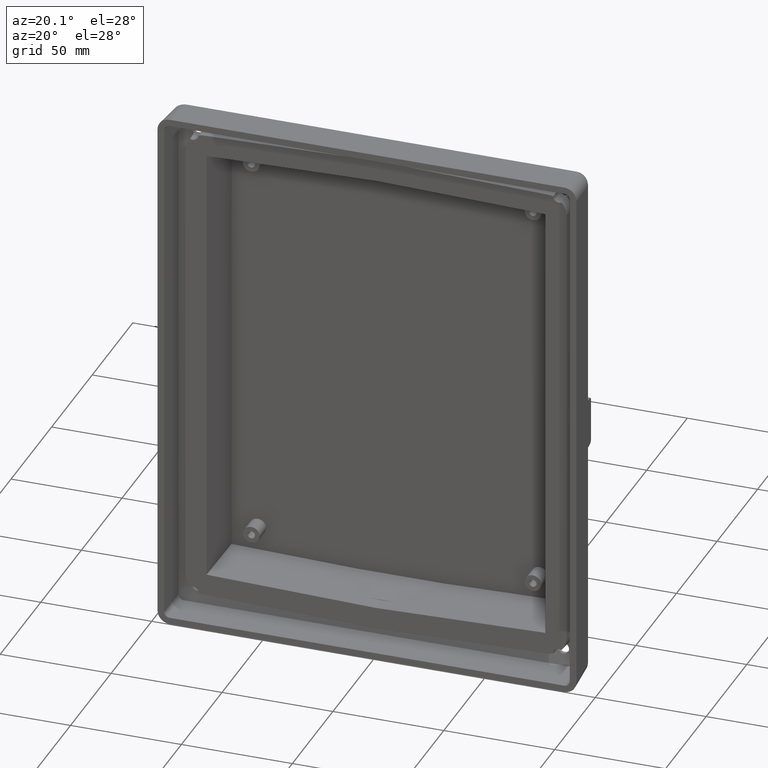
[diagram: clean part render]
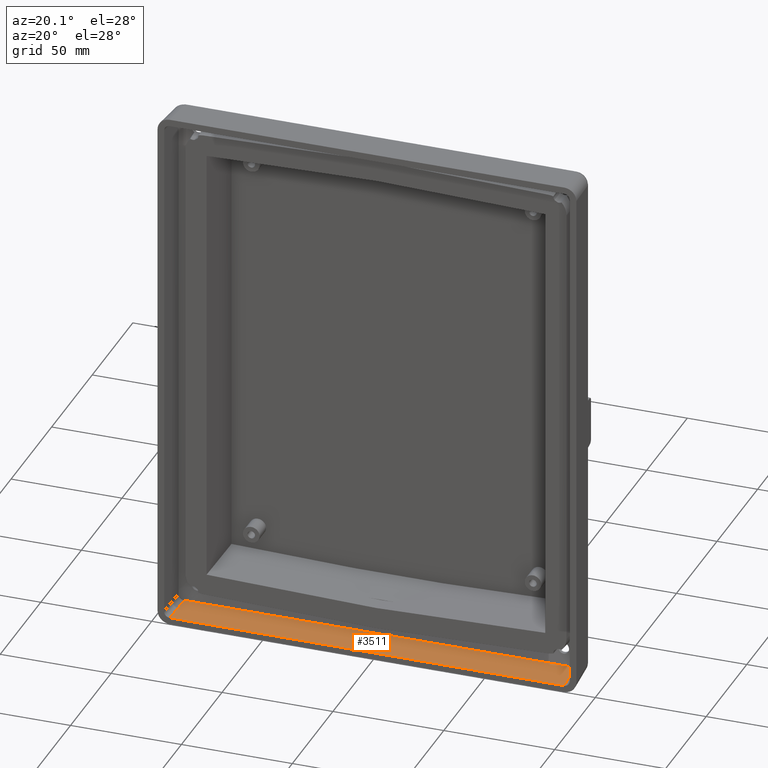
[diagram: same view with one face highlighted and labeled with its STEP entity id]
A machine part, auxiliary view. The second image highlights one B-rep face of the part: STEP entity #3511.
In plain terms, the highlighted planar face has unit normal (-0, 0.0523, -0.9986).
Its self-contained STEP definition (entity closure, byte-faithful):
#391 = ORIENTED_EDGE ( 'NONE', *, *, #3056, .F. ) ;
#512 = EDGE_CURVE ( 'NONE', #4936, #2761, #2225, .T. ) ;
#972 =( BOUNDED_CURVE ( )  B_SPLINE_CURVE ( 3, ( #1969, #5838, #5372, #985 ),
 .UNSPECIFIED., .F., .F. ) 
 B_SPLINE_CURVE_WITH_KNOTS ( ( 4, 4 ),
 ( 4.346454297330240000, 4.418813005703901500 ),
 .UNSPECIFIED. ) 
 CURVE ( )  GEOMETRIC_REPRESENTATION_ITEM ( )  RATIONAL_B_SPLINE_CURVE ( ( 1.000000000000000000, 0.9995637323675415900, 0.9995637323675415900, 1.000000000000000000 ) ) 
 REPRESENTATION_ITEM ( '' )  );
#985 = CARTESIAN_POINT ( 'NONE',  ( 88.10726799811912700, 7.480590331512639000, -117.1038418350054500 ) ) ;
#992 = CARTESIAN_POINT ( 'NONE',  ( -87.30554754837788800, 7.522964829301166400, -117.1016210816781200 ) ) ;
#1001 = CARTESIAN_POINT ( 'NONE',  ( -88.91857135938424500, -7.999999999999996400, -117.9151451962705400 ) ) ;
#1073 = CARTESIAN_POINT ( 'NONE',  ( -94.00000000000009900, -7.999999999999996400, -117.9151451962705600 ) ) ;
#1086 = CARTESIAN_POINT ( 'NONE',  ( 93.47592220716968800, 7.544165952240989600, -117.1005099779065400 ) ) ;
#1205 = LINE ( 'NONE', #1073, #2434 ) ;
#1405 = CARTESIAN_POINT ( 'NONE',  ( -88.10726799811915600, 7.480590331512635400, -117.1038418350054500 ) ) ;
#1482 = LINE ( 'NONE', #1086, #3547 ) ;
#1529 = CARTESIAN_POINT ( 'NONE',  ( -85.71458524368937000, 7.544165952240990500, -117.1005099779065400 ) ) ;
#1574 = LINE ( 'NONE', #2438, #4013 ) ;
#1578 = VECTOR ( 'NONE', #5420, 1000.000000000000200 ) ;
#1810 = LINE ( 'NONE', #3035, #1578 ) ;
#1902 = PLANE ( 'NONE',  #4128 ) ;
#1969 = CARTESIAN_POINT ( 'NONE',  ( 85.71458524368937000, 7.544165952240994100, -117.1005099779065400 ) ) ;
#2016 = CARTESIAN_POINT ( 'NONE',  ( -85.71458524368937000, 7.544165952240990500, -117.1005099779065400 ) ) ;
#2096 = DIRECTION ( 'NONE',  ( 1.000000000000000000, -0.0000000000000000000, -0.0000000000000000000 ) ) ;
#2174 = EDGE_CURVE ( 'NONE', #2414, #2641, #972, .T. ) ;
#2225 =( BOUNDED_CURVE ( )  B_SPLINE_CURVE ( 3, ( #3429, #992, #5358, #2016 ),
 .UNSPECIFIED., .F., .T. ) 
 B_SPLINE_CURVE_WITH_KNOTS ( ( 4, 4 ),
 ( 1.864372301475683700, 1.936731009849346000 ),
 .UNSPECIFIED. ) 
 CURVE ( )  GEOMETRIC_REPRESENTATION_ITEM ( )  RATIONAL_B_SPLINE_CURVE ( ( 1.000000000000000000, 0.9995637323675415900, 0.9995637323675415900, 1.000000000000000000 ) ) 
 REPRESENTATION_ITEM ( '' )  );
#2414 = VERTEX_POINT ( 'NONE', #4057 ) ;
#2434 = VECTOR ( 'NONE', #2491, 1000.000000000000000 ) ;
#2438 = CARTESIAN_POINT ( 'NONE',  ( 88.52254060668623500, -0.4432830752258681300, -117.5191144435725600 ) ) ;
#2491 = DIRECTION ( 'NONE',  ( 1.000000000000000000, 0.0000000000000000000, 0.0000000000000000000 ) ) ;
#2641 = VERTEX_POINT ( 'NONE', #5225 ) ;
#2761 = VERTEX_POINT ( 'NONE', #1529 ) ;
#3035 = CARTESIAN_POINT ( 'NONE',  ( -88.00900537118005200, 9.355552947432965300, -117.0055792080663400 ) ) ;
#3056 = EDGE_CURVE ( 'NONE', #2641, #4870, #1574, .T. ) ;
#3229 = CARTESIAN_POINT ( 'NONE',  ( 88.91857135938421700, -7.999999999999996400, -117.9151451962705400 ) ) ;
#3296 = ORIENTED_EDGE ( 'NONE', *, *, #512, .F. ) ;
#3355 = CARTESIAN_POINT ( 'NONE',  ( 94.00000000000009900, -0.1570078687288318500, -117.5041113957362600 ) ) ;
#3401 = DIRECTION ( 'NONE',  ( 0.0000000000000000000, 0.9986295347545739400, 0.05233595624294395300 ) ) ;
#3429 = CARTESIAN_POINT ( 'NONE',  ( -88.10726799811915600, 7.480590331512635400, -117.1038418350054500 ) ) ;
#3511 = ADVANCED_FACE ( 'NONE', ( #5459 ), #1902, .F. ) ;
#3547 = VECTOR ( 'NONE', #2096, 1000.000000000000000 ) ;
#3714 = EDGE_CURVE ( 'NONE', #2761, #2414, #1482, .T. ) ;
#4013 = VECTOR ( 'NONE', #5785, 1000.000000000000200 ) ;
#4057 = CARTESIAN_POINT ( 'NONE',  ( 85.71458524368937000, 7.544165952240994100, -117.1005099779065400 ) ) ;
#4128 = AXIS2_PLACEMENT_3D ( 'NONE', #3355, #4338, #3401 ) ;
#4154 = ORIENTED_EDGE ( 'NONE', *, *, #6081, .F. ) ;
#4338 = DIRECTION ( 'NONE',  ( -0.0000000000000000000, 0.05233595624294395300, -0.9986295347545739400 ) ) ;
#4870 = VERTEX_POINT ( 'NONE', #3229 ) ;
#4936 = VERTEX_POINT ( 'NONE', #1405 ) ;
#5160 = VERTEX_POINT ( 'NONE', #1001 ) ;
#5225 = CARTESIAN_POINT ( 'NONE',  ( 88.10726799811912700, 7.480590331512639000, -117.1038418350054500 ) ) ;
#5358 = CARTESIAN_POINT ( 'NONE',  ( -86.50763852835555700, 7.544165952240992300, -117.1005099779065300 ) ) ;
#5372 = CARTESIAN_POINT ( 'NONE',  ( 87.30554754837785900, 7.522964829301167300, -117.1016210816781200 ) ) ;
#5420 = DIRECTION ( 'NONE',  ( 0.05226442768871403900, 0.9972646886342372300, 0.05226442768871402500 ) ) ;
#5459 = FACE_OUTER_BOUND ( 'NONE', #5573, .T. ) ;
#5506 = ORIENTED_EDGE ( 'NONE', *, *, #2174, .F. ) ;
#5534 = ORIENTED_EDGE ( 'NONE', *, *, #3714, .F. ) ;
#5573 = EDGE_LOOP ( 'NONE', ( #6069, #391, #5506, #5534, #3296, #4154 ) ) ;
#5785 = DIRECTION ( 'NONE',  ( 0.05226442768871403900, -0.9972646886342372300, -0.05226442768871402500 ) ) ;
#5838 = CARTESIAN_POINT ( 'NONE',  ( 86.50763852835554200, 7.544165952240995800, -117.1005099779065300 ) ) ;
#6004 = EDGE_CURVE ( 'NONE', #5160, #4870, #1205, .T. ) ;
#6069 = ORIENTED_EDGE ( 'NONE', *, *, #6004, .T. ) ;
#6081 = EDGE_CURVE ( 'NONE', #5160, #4936, #1810, .T. ) ;